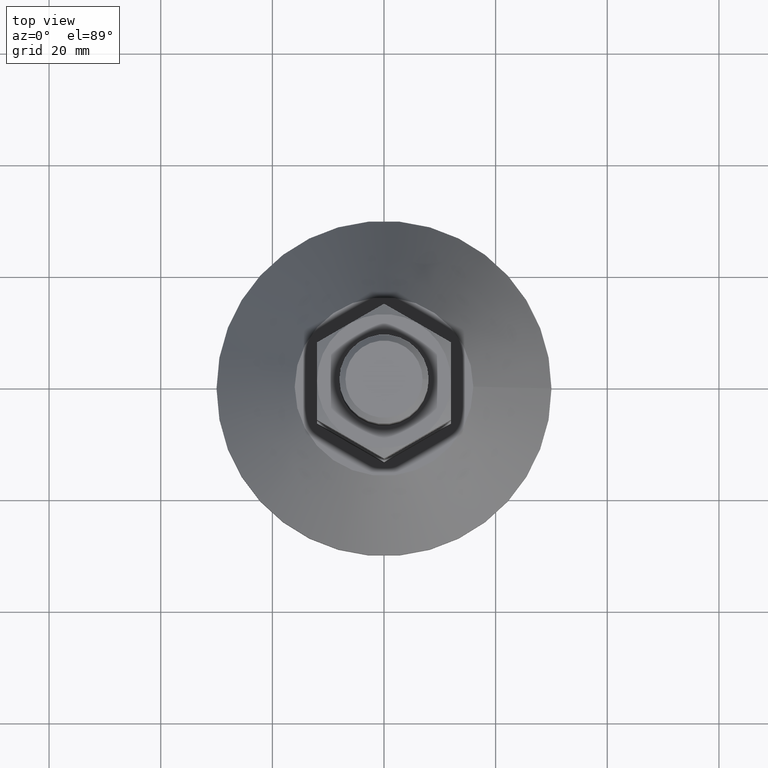
[diagram: clean part render]
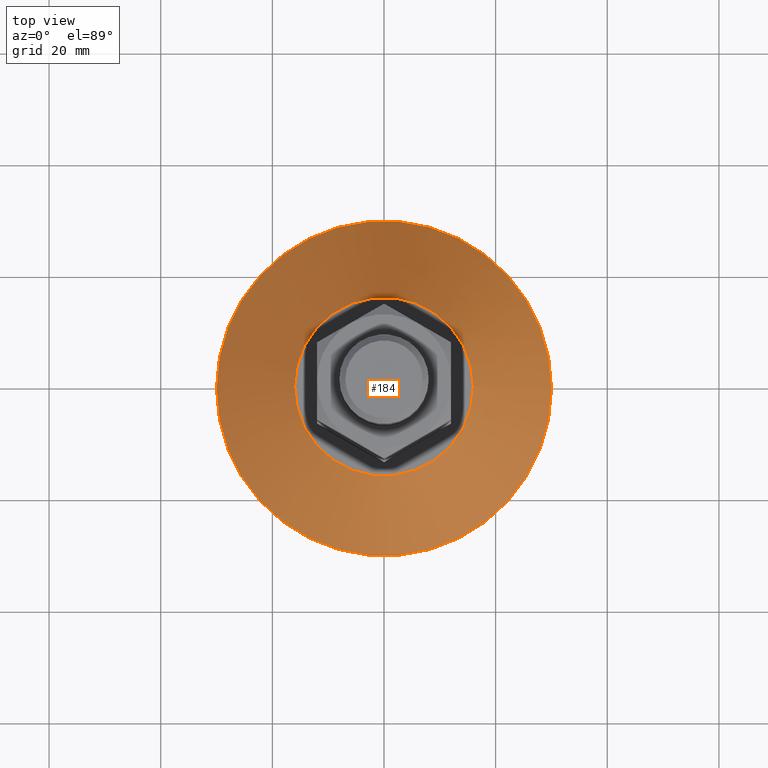
[diagram: same view with one face highlighted and labeled with its STEP entity id]
A machine part, top view. The second image highlights one B-rep face of the part: STEP entity #184.
In plain terms, the highlighted face is a freeform B-spline surface patch.
Its self-contained STEP definition (entity closure, byte-faithful):
#99=CARTESIAN_POINT('',(30.000000000000227,3.061617E-016,5.000000000000114));
#100=VERTEX_POINT('',#99);
#107=CARTESIAN_POINT('',(-30.000000000000227,3.061617E-016,5.000000000000114));
#108=VERTEX_POINT('',#107);
#109=CARTESIAN_POINT('',(0.0,3.061617E-016,5.000000000000114));
#110=DIRECTION('',(0.0,-6.123234E-017,-1.0));
#111=DIRECTION('',(1.0,0.0,0.0));
#112=AXIS2_PLACEMENT_3D('',#109,#110,#111);
#113=CIRCLE('',#112,30.000000000000227);
#114=EDGE_CURVE('',#100,#108,#113,.T.);
#116=CARTESIAN_POINT('',(0.0,3.061617E-016,5.000000000000114));
#117=DIRECTION('',(0.0,-6.123234E-017,-1.0));
#118=DIRECTION('',(1.0,0.0,0.0));
#119=AXIS2_PLACEMENT_3D('',#116,#117,#118);
#120=CIRCLE('',#119,30.000000000000227);
#121=EDGE_CURVE('',#108,#100,#120,.T.);
#129=CARTESIAN_POINT('',(30.000000000000227,3.061617E-016,5.000000000000114));
#130=CARTESIAN_POINT('',(30.000000000000224,-30.000000000000224,5.000000000000116));
#131=CARTESIAN_POINT('',(1.972152E-031,-30.000000000000227,5.000000000000116));
#132=CARTESIAN_POINT('',(-30.000000000000224,-30.000000000000224,5.000000000000116));
#133=CARTESIAN_POINT('',(-30.000000000000227,3.061617E-016,5.000000000000114));
#134=CARTESIAN_POINT('',(-30.000000000000224,30.000000000000224,5.000000000000112));
#135=CARTESIAN_POINT('',(-1.972152E-031,30.000000000000227,5.000000000000112));
#136=CARTESIAN_POINT('',(30.000000000000224,30.000000000000224,5.000000000000112));
#137=CARTESIAN_POINT('',(30.000000000000227,3.061617E-016,5.000000000000114));
#138=CARTESIAN_POINT('',(15.999999999999771,1.408344E-015,23.0));
#139=CARTESIAN_POINT('',(15.999999999999771,-15.999999999999769,23.0));
#140=CARTESIAN_POINT('',(0.0,-15.999999999999769,23.0));
#141=CARTESIAN_POINT('',(-15.999999999999771,-15.999999999999769,23.0));
#142=CARTESIAN_POINT('',(-15.999999999999771,1.408344E-015,23.0));
#143=CARTESIAN_POINT('',(-15.999999999999771,15.999999999999771,23.0));
#144=CARTESIAN_POINT('',(0.0,15.999999999999773,23.0));
#145=CARTESIAN_POINT('',(15.999999999999771,15.999999999999771,23.0));
#146=CARTESIAN_POINT('',(15.999999999999771,1.408344E-015,23.0));
#154=(BOUNDED_SURFACE()B_SPLINE_SURFACE(2,1,((#129,#138),(#130,#139),(#131,#140),(#132,#141),(#133,#142),(#134,#143),(#135,#144),(#136,#145),(#137,#146)),.UNSPECIFIED.,.T.,.F.,.U.)B_SPLINE_SURFACE_WITH_KNOTS((3,2,2,2,3),(2,2),(0.0,0.250000000000000,0.500000000000000,0.750000000000000,1.0),(0.0,22.803508501982950),.UNSPECIFIED.)GEOMETRIC_REPRESENTATION_ITEM()RATIONAL_B_SPLINE_SURFACE(((1.0,1.0),(0.707106781186548,0.707106781186548),(1.0,1.0),(0.707106781186548,0.707106781186548),(1.0,1.0),(0.707106781186548,0.707106781186548),(1.0,1.0),(0.707106781186548,0.707106781186548),(1.0,1.0)))REPRESENTATION_ITEM('')SURFACE());
#155=CARTESIAN_POINT('',(15.999999999999773,1.408344E-015,23.0));
#156=VERTEX_POINT('',#155);
#157=CARTESIAN_POINT('',(30.000000000000227,3.061617E-016,5.000000000000114));
#158=DIRECTION('',(-0.613940613514935,4.833388E-017,0.789352217376315));
#159=VECTOR('',#158,22.803508501982950);
#160=LINE('',#157,#159);
#161=EDGE_CURVE('',#100,#156,#160,.T.);
#162=ORIENTED_EDGE('',*,*,#161,.T.);
#163=CARTESIAN_POINT('',(-15.999999999999773,1.408344E-015,23.0));
#164=VERTEX_POINT('',#163);
#165=CARTESIAN_POINT('',(0.0,1.408344E-015,23.0));
#166=DIRECTION('',(0.0,-6.123234E-017,-1.0));
#167=DIRECTION('',(1.0,0.0,0.0));
#168=AXIS2_PLACEMENT_3D('',#165,#166,#167);
#169=CIRCLE('',#168,15.999999999999773);
#170=EDGE_CURVE('',#156,#164,#169,.T.);
#171=ORIENTED_EDGE('',*,*,#170,.T.);
#172=CARTESIAN_POINT('',(0.0,1.408344E-015,23.0));
#173=DIRECTION('',(0.0,-6.123234E-017,-1.0));
#174=DIRECTION('',(1.0,0.0,0.0));
#175=AXIS2_PLACEMENT_3D('',#172,#173,#174);
#176=CIRCLE('',#175,15.999999999999773);
#177=EDGE_CURVE('',#164,#156,#176,.T.);
#178=ORIENTED_EDGE('',*,*,#177,.T.);
#179=ORIENTED_EDGE('',*,*,#161,.F.);
#180=ORIENTED_EDGE('',*,*,#121,.F.);
#181=ORIENTED_EDGE('',*,*,#114,.F.);
#182=EDGE_LOOP('',(#162,#171,#178,#179,#180,#181));
#183=FACE_OUTER_BOUND('',#182,.T.);
#184=ADVANCED_FACE('',(#183),#154,.F.);